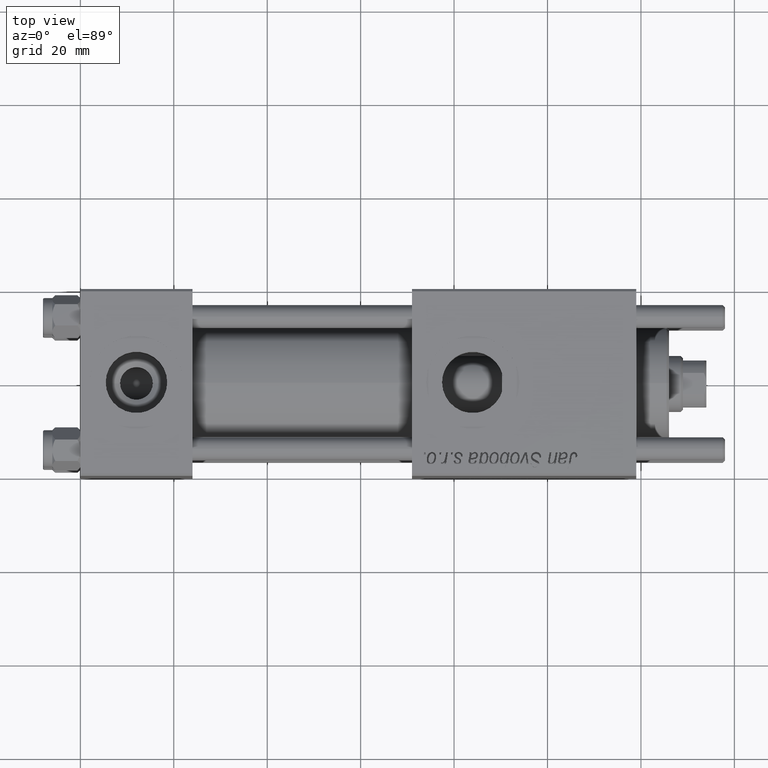
[diagram: clean part render]
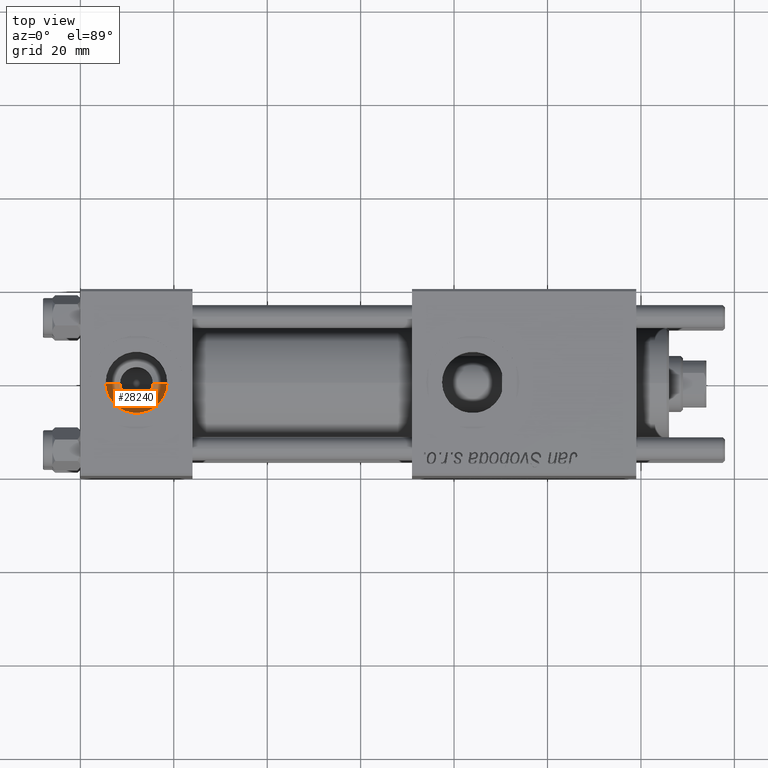
[diagram: same view with one face highlighted and labeled with its STEP entity id]
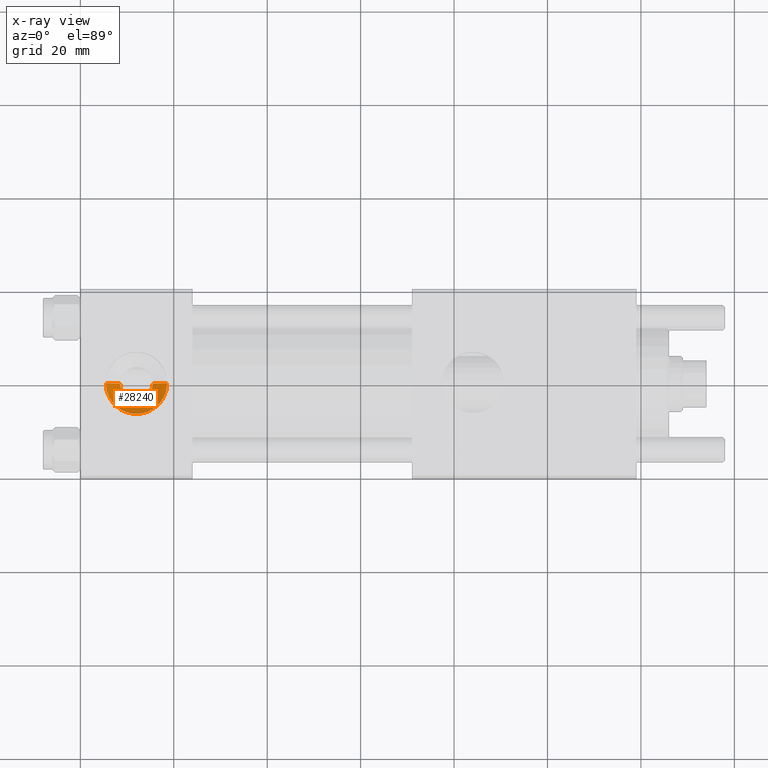
[diagram: x-ray of the same camera — body ghosted, the highlighted face saturated]
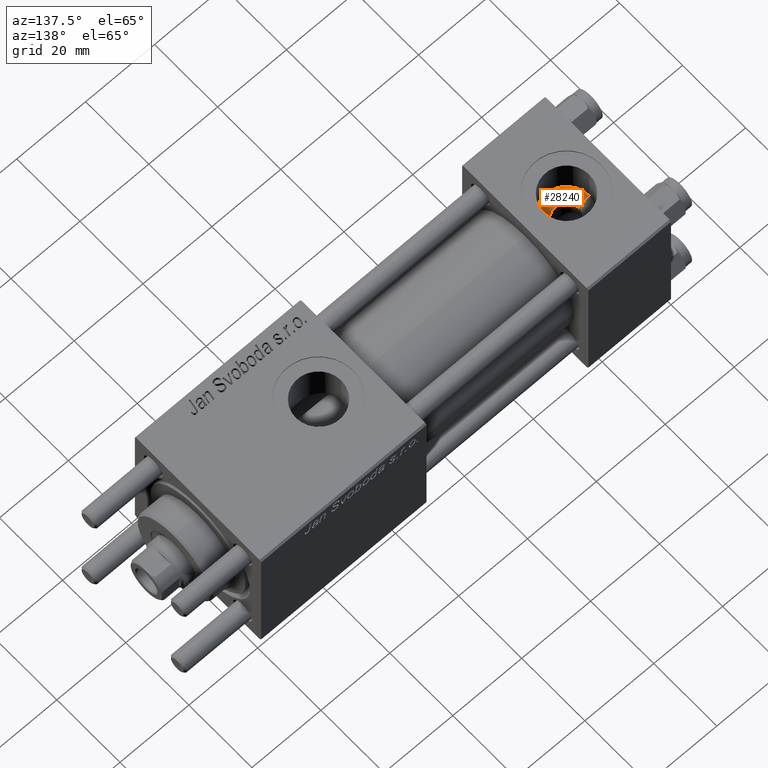
[diagram: same view with one face highlighted and labeled with its STEP entity id]
A machine part, top view. The second image highlights one B-rep face of the part: STEP entity #28240.
The next image is the same camera in x-ray: the body ghosted, the highlighted face saturated — about 0% of this face is hidden behind the body in this view.
A second angle (auxiliary view) of the same face is appended — the face is thin or edge-on in the first view.
In plain terms, the highlighted conical surface has half-angle 60.452 deg.
Its self-contained STEP definition (entity closure, byte-faithful):
#3802 = DIRECTION ( 'NONE',  ( 0.000000000000000000, 0.000000000000000000, 1.000000000000000000 ) ) ;
#4521 = CARTESIAN_POINT ( 'NONE',  ( 8.500000000000000000, 4.286263797015752865E-16, 7.419999999999996376 ) ) ;
#6535 = ORIENTED_EDGE ( 'NONE', *, *, #56025, .F. ) ;
#6613 = FACE_OUTER_BOUND ( 'NONE', #39773, .T. ) ;
#7515 = VERTEX_POINT ( 'NONE', #4521 ) ;
#7646 = AXIS2_PLACEMENT_3D ( 'NONE', #41996, #3802, #55183 ) ;
#8307 = VERTEX_POINT ( 'NONE', #31367 ) ;
#9404 = CARTESIAN_POINT ( 'NONE',  ( 8.500000000000000000, 4.286263797015751879E-16, 7.419999999999996376 ) ) ;
#11512 = CONICAL_SURFACE ( 'NONE', #44486, 3.499999999999999556, 1.055086625138361267 ) ;
#12292 = DIRECTION ( 'NONE',  ( 1.000000000000000000, 0.000000000000000000, 0.000000000000000000 ) ) ;
#16255 = CIRCLE ( 'NONE', #23562, 6.579999999999999183 ) ;
#21161 = DIRECTION ( 'NONE',  ( -0.000000000000000000, -0.000000000000000000, -1.000000000000000000 ) ) ;
#21340 = ORIENTED_EDGE ( 'NONE', *, *, #39527, .T. ) ;
#22991 = DIRECTION ( 'NONE',  ( 1.000000000000000000, 0.000000000000000000, 0.000000000000000000 ) ) ;
#23553 = DIRECTION ( 'NONE',  ( 0.000000000000000000, 0.000000000000000000, 1.000000000000000000 ) ) ;
#23562 = AXIS2_PLACEMENT_3D ( 'NONE', #39248, #21161, #12292 ) ;
#28240 = ADVANCED_FACE ( 'NONE', ( #6613 ), #11512, .F. ) ;
#30547 = VECTOR ( 'NONE', #54627, 1000.000000000000000 ) ;
#31367 = CARTESIAN_POINT ( 'NONE',  ( 18.57999999999999829, 1.540743955509788682E-30, 9.165987261146492315 ) ) ;
#32974 = CARTESIAN_POINT ( 'NONE',  ( 15.50000000000000000, 1.540743955509788682E-30, 7.419999999999996376 ) ) ;
#33218 = VECTOR ( 'NONE', #45587, 1000.000000000000000 ) ;
#35156 = CARTESIAN_POINT ( 'NONE',  ( 5.420000000000000817, 8.058175938389596335E-16, 9.165987261146492315 ) ) ;
#35274 = VERTEX_POINT ( 'NONE', #45402 ) ;
#38514 = EDGE_CURVE ( 'NONE', #7515, #35274, #42465, .T. ) ;
#38590 = ORIENTED_EDGE ( 'NONE', *, *, #40935, .F. ) ;
#39248 = CARTESIAN_POINT ( 'NONE',  ( 12.00000000000000000, 1.540743955509788682E-30, 9.165987261146492315 ) ) ;
#39527 = EDGE_CURVE ( 'NONE', #7515, #52306, #49759, .T. ) ;
#39773 = EDGE_LOOP ( 'NONE', ( #52304, #21340, #6535, #38590 ) ) ;
#40935 = EDGE_CURVE ( 'NONE', #35274, #8307, #54762, .T. ) ;
#41996 = CARTESIAN_POINT ( 'NONE',  ( 12.00000000000000000, 1.540743955509788682E-30, 7.419999999999996376 ) ) ;
#42465 = CIRCLE ( 'NONE', #7646, 3.499999999999999556 ) ;
#44486 = AXIS2_PLACEMENT_3D ( 'NONE', #49112, #23553, #22991 ) ;
#45402 = CARTESIAN_POINT ( 'NONE',  ( 15.50000000000000000, 1.540743955509788682E-30, 7.419999999999996376 ) ) ;
#45587 = DIRECTION ( 'NONE',  ( 0.8699429503561852961, 0.000000000000000000, 0.4931523731318503412 ) ) ;
#49112 = CARTESIAN_POINT ( 'NONE',  ( 12.00000000000000000, 1.540743955509788682E-30, 7.419999999999996376 ) ) ;
#49759 = LINE ( 'NONE', #9404, #30547 ) ;
#52304 = ORIENTED_EDGE ( 'NONE', *, *, #38514, .F. ) ;
#52306 = VERTEX_POINT ( 'NONE', #35156 ) ;
#54627 = DIRECTION ( 'NONE',  ( -0.8699429503561852961, 1.065372849594507103E-16, 0.4931523731318503412 ) ) ;
#54762 = LINE ( 'NONE', #32974, #33218 ) ;
#55183 = DIRECTION ( 'NONE',  ( 1.000000000000000000, 0.000000000000000000, 0.000000000000000000 ) ) ;
#56025 = EDGE_CURVE ( 'NONE', #8307, #52306, #16255, .T. ) ;